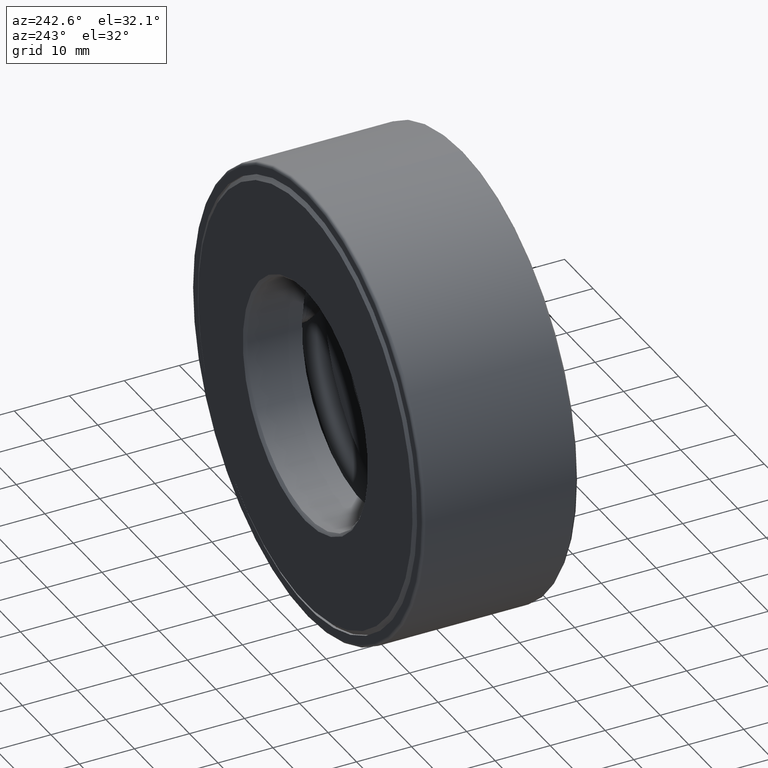
[diagram: clean part render]
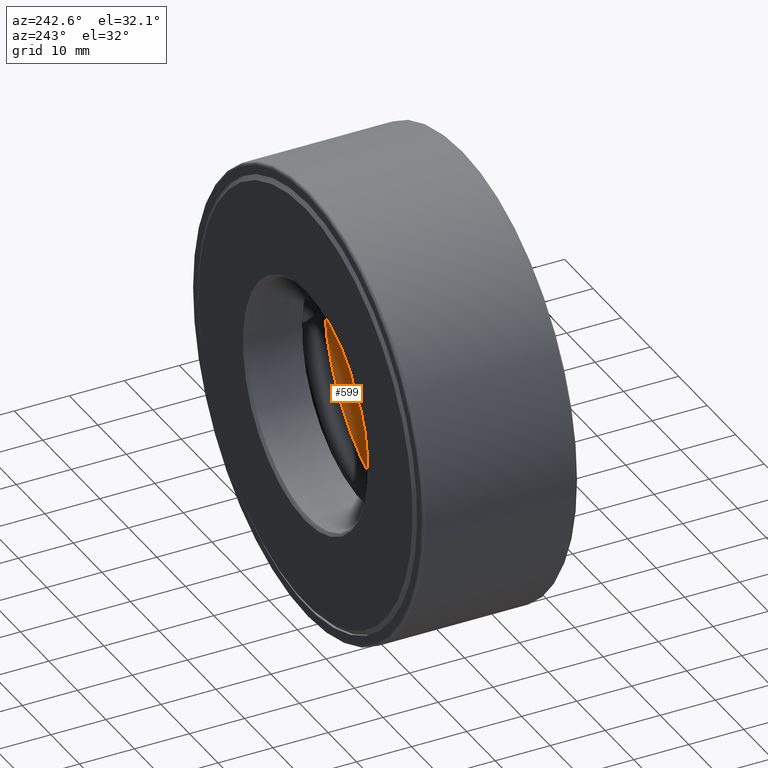
[diagram: same view with one face highlighted and labeled with its STEP entity id]
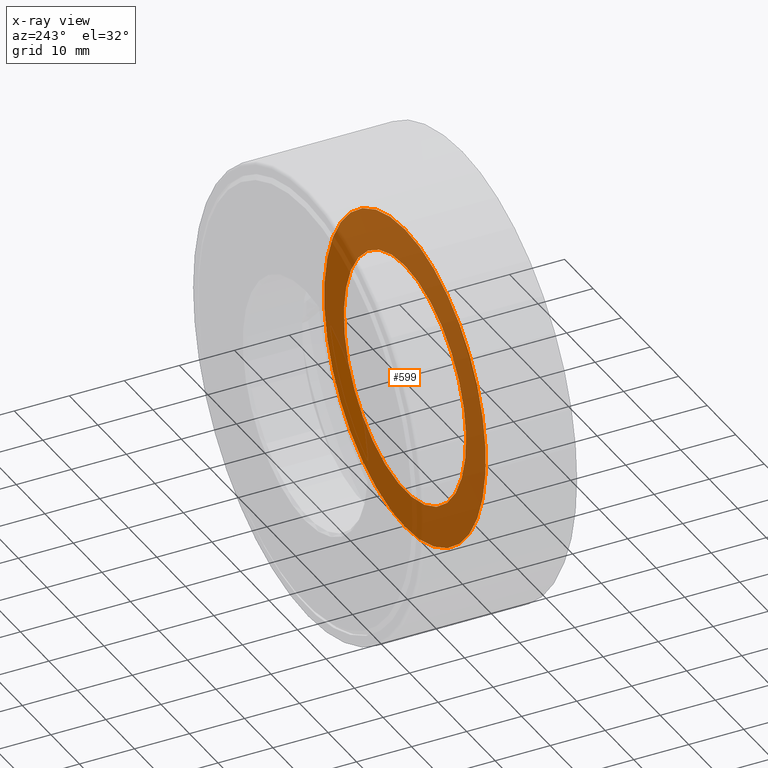
[diagram: x-ray of the same camera — body ghosted, the highlighted face saturated]
A machine part, auxiliary view. The second image highlights one B-rep face of the part: STEP entity #599.
The next image is the same camera in x-ray: the body ghosted, the highlighted face saturated — about 88% of this face is hidden behind the body in this view.
In plain terms, the highlighted planar face has unit normal (0, -1, 0).
Its self-contained STEP definition (entity closure, byte-faithful):
#32 = AXIS2_PLACEMENT_3D ( 'NONE', #185, #383, #519 ) ;
#47 = CARTESIAN_POINT ( 'NONE',  ( 0.0000000000000000000, 0.4125000000000002000, 0.0000000000000000000 ) ) ;
#54 = CARTESIAN_POINT ( 'NONE',  ( 0.0000000000000000000, 0.4125000000000000900, 0.8437500000000000000 ) ) ;
#57 = VERTEX_POINT ( 'NONE', #54 ) ;
#58 = EDGE_LOOP ( 'NONE', ( #493 ) ) ;
#140 = FACE_BOUND ( 'NONE', #348, .T. ) ;
#149 = PLANE ( 'NONE',  #32 ) ;
#151 = CARTESIAN_POINT ( 'NONE',  ( 0.0000000000000000000, 0.4125000000000002000, 1.114749999999999700 ) ) ;
#185 = CARTESIAN_POINT ( 'NONE',  ( 1.039563927478330000E-016, 0.4125000000000002000, 0.0000000000000000000 ) ) ;
#190 = AXIS2_PLACEMENT_3D ( 'NONE', #47, #323, #222 ) ;
#222 = DIRECTION ( 'NONE',  ( 0.0000000000000000000, 0.0000000000000000000, 1.000000000000000000 ) ) ;
#236 = EDGE_CURVE ( 'NONE', #57, #57, #331, .T. ) ;
#253 = ORIENTED_EDGE ( 'NONE', *, *, #236, .F. ) ;
#265 = AXIS2_PLACEMENT_3D ( 'NONE', #446, #352, #347 ) ;
#323 = DIRECTION ( 'NONE',  ( -0.0000000000000000000, 1.000000000000000000, -0.0000000000000000000 ) ) ;
#331 = CIRCLE ( 'NONE', #265, 0.8437500000000000000 ) ;
#347 = DIRECTION ( 'NONE',  ( 0.0000000000000000000, 0.0000000000000000000, 1.000000000000000000 ) ) ;
#348 = EDGE_LOOP ( 'NONE', ( #253 ) ) ;
#352 = DIRECTION ( 'NONE',  ( -0.0000000000000000000, 1.000000000000000000, -0.0000000000000000000 ) ) ;
#380 = VERTEX_POINT ( 'NONE', #151 ) ;
#382 = EDGE_CURVE ( 'NONE', #380, #380, #444, .T. ) ;
#383 = DIRECTION ( 'NONE',  ( 0.0000000000000000000, -1.000000000000000000, 0.0000000000000000000 ) ) ;
#444 = CIRCLE ( 'NONE', #190, 1.114749999999999700 ) ;
#446 = CARTESIAN_POINT ( 'NONE',  ( 0.0000000000000000000, 0.4125000000000000900, 0.0000000000000000000 ) ) ;
#493 = ORIENTED_EDGE ( 'NONE', *, *, #382, .T. ) ;
#519 = DIRECTION ( 'NONE',  ( 0.0000000000000000000, -0.0000000000000000000, -1.000000000000000000 ) ) ;
#532 = FACE_OUTER_BOUND ( 'NONE', #58, .T. ) ;
#599 = ADVANCED_FACE ( 'NONE', ( #140, #532 ), #149, .F. ) ;